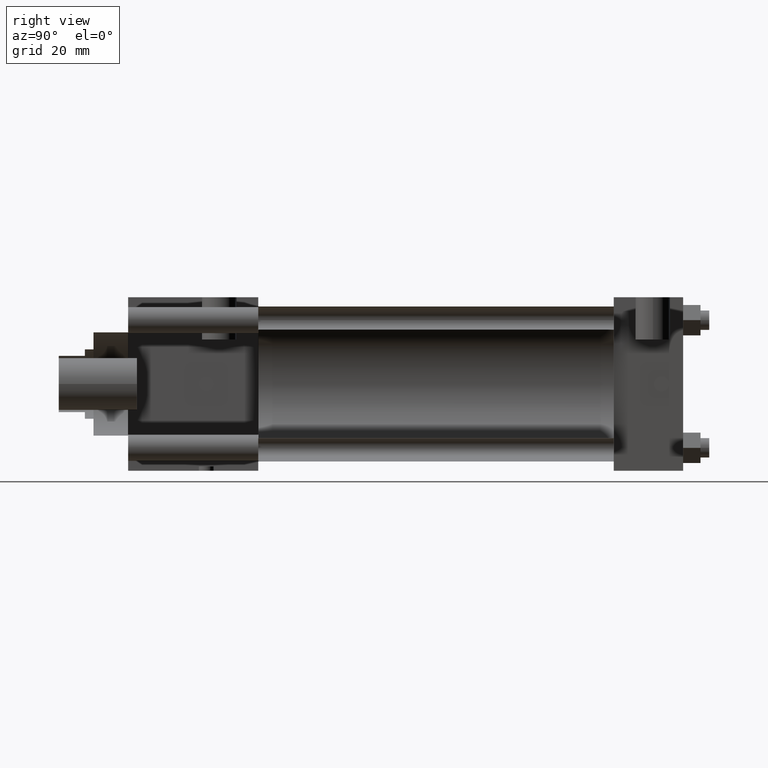
[diagram: clean part render]
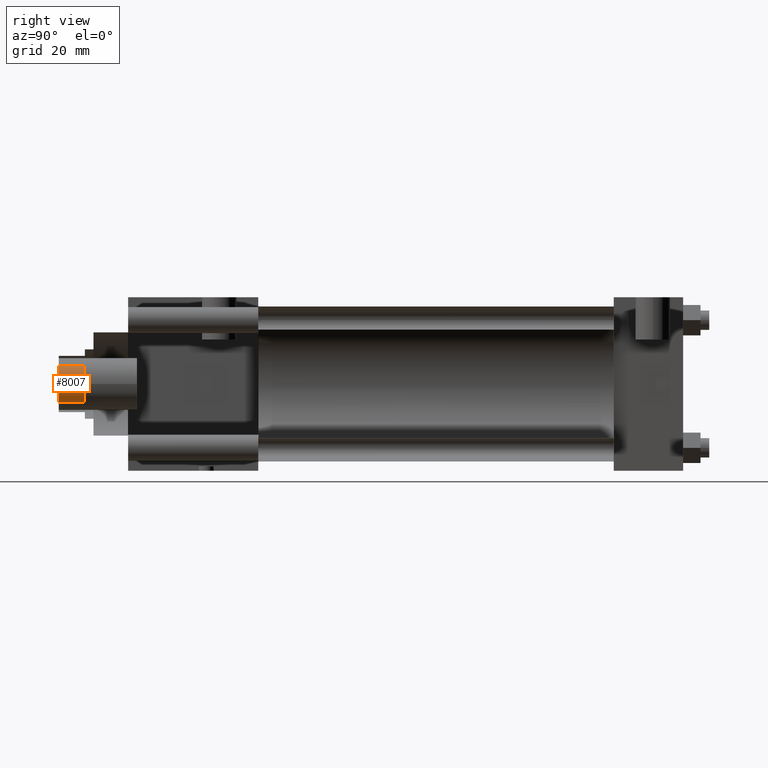
[diagram: same view with one face highlighted and labeled with its STEP entity id]
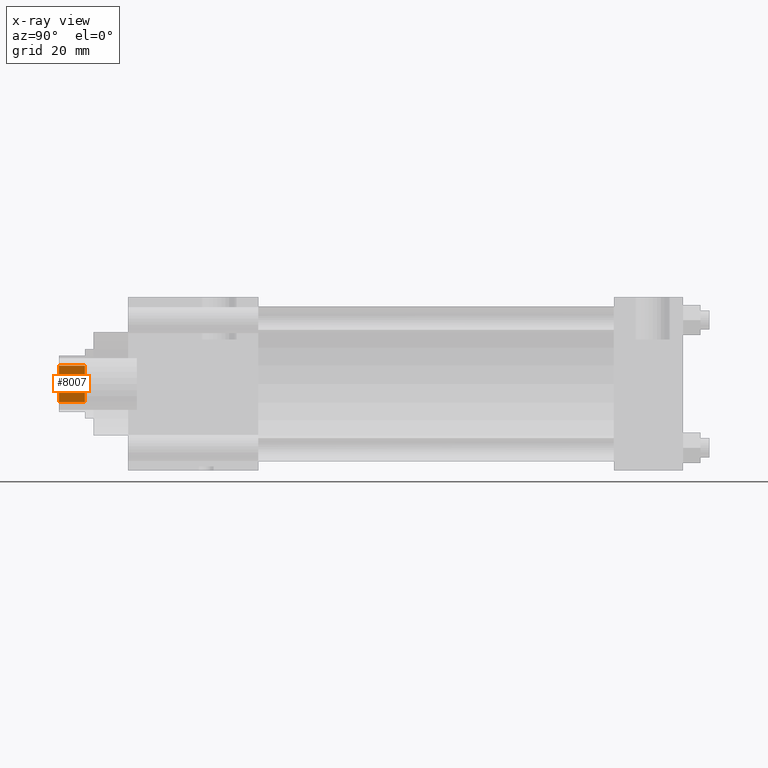
[diagram: x-ray of the same camera — body ghosted, the highlighted face saturated]
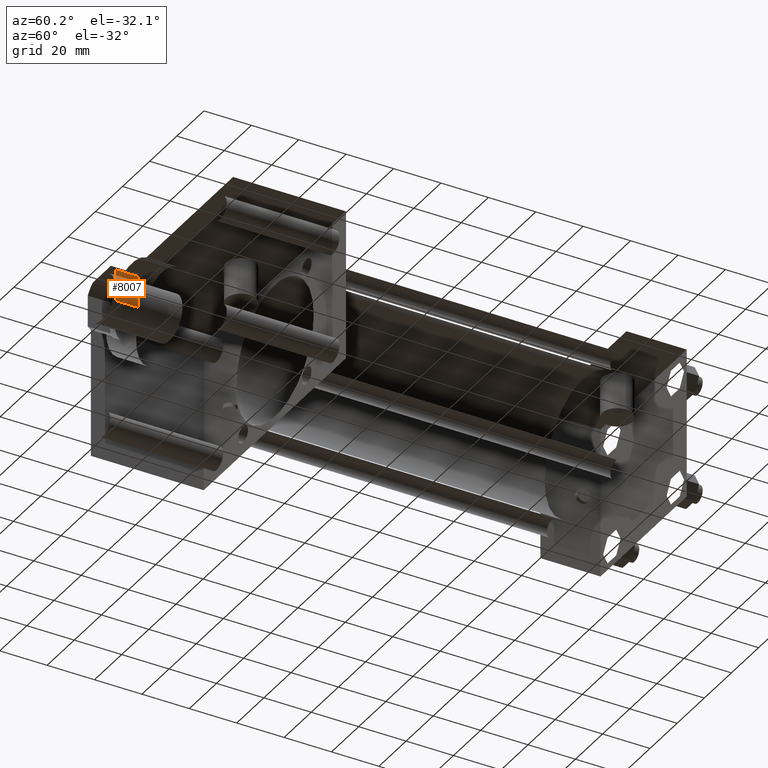
[diagram: same view with one face highlighted and labeled with its STEP entity id]
A machine part, right view. The second image highlights one B-rep face of the part: STEP entity #8007.
The next image is the same camera in x-ray: the body ghosted, the highlighted face saturated — about 0% of this face is hidden behind the body in this view.
A second angle (auxiliary view) of the same face is appended — the face is thin or edge-on in the first view.
In plain terms, the highlighted planar face has unit normal (1, 0, 0).
Its self-contained STEP definition (entity closure, byte-faithful):
#209=VERTEX_POINT('',#210);
#210=CARTESIAN_POINT('',(1.031875000E+001,0.000000000E+000,-6.682514452E+000));
#211=EDGE_CURVE('',#209,#216,#212,.T.);
#212=LINE('',#213,#214);
#213=CARTESIAN_POINT('',(1.031875000E+001,0.000000000E+000,-1.031875000E+001));
#214=VECTOR('',#215,1.0E+000);
#215=DIRECTION('',(0.0E+000,0.0E+000,1.0E+000));
#216=VERTEX_POINT('',#217);
#217=CARTESIAN_POINT('',(1.031875000E+001,0.000000000E+000,6.682514452E+000));
#254=FACE_OUTER_BOUND('',#255,.T.);
#255=EDGE_LOOP('',(#256,#257,#258,#259));
#256=ORIENTED_EDGE('',*,*,#260,.F.);
#257=ORIENTED_EDGE('',*,*,#211,.F.);
#258=ORIENTED_EDGE('',*,*,#267,.F.);
#259=ORIENTED_EDGE('',*,*,#274,.T.);
#260=EDGE_CURVE('',#216,#265,#261,.F.);
#261=LINE('',#262,#263);
#262=CARTESIAN_POINT('',(1.031875000E+001,9.525000000E+000,6.682514452E+000));
#263=VECTOR('',#264,1.0E+000);
#264=DIRECTION('',(0.0E+000,-1.0E+000,0.0E+000));
#265=VERTEX_POINT('',#266);
#266=CARTESIAN_POINT('',(1.031875000E+001,9.525000000E+000,6.682514452E+000));
#267=EDGE_CURVE('',#272,#209,#268,.T.);
#268=LINE('',#269,#270);
#269=CARTESIAN_POINT('',(1.031875000E+001,9.525000000E+000,-6.682514452E+000));
#270=VECTOR('',#271,1.0E+000);
#271=DIRECTION('',(0.0E+000,-1.0E+000,0.0E+000));
#272=VERTEX_POINT('',#273);
#273=CARTESIAN_POINT('',(1.031875000E+001,9.525000000E+000,-6.682514452E+000));
#274=EDGE_CURVE('',#272,#265,#275,.T.);
#275=LINE('',#276,#277);
#276=CARTESIAN_POINT('',(1.031875000E+001,9.525000000E+000,-1.031875000E+001));
#277=VECTOR('',#278,1.0E+000);
#278=DIRECTION('',(0.0E+000,0.0E+000,1.0E+000));
#279=PLANE('',#280);
#280=AXIS2_PLACEMENT_3D('',#281,#282,#283);
#281=CARTESIAN_POINT('',(1.031875000E+001,9.525000000E+000,-1.031875000E+001));
#282=DIRECTION('',(1.0E+000,0.0E+000,0.0E+000));
#283=DIRECTION('',(0.0E+000,0.0E+000,-1.0E+000));
#8007=ADVANCED_FACE('',(#254),#279,.T.);